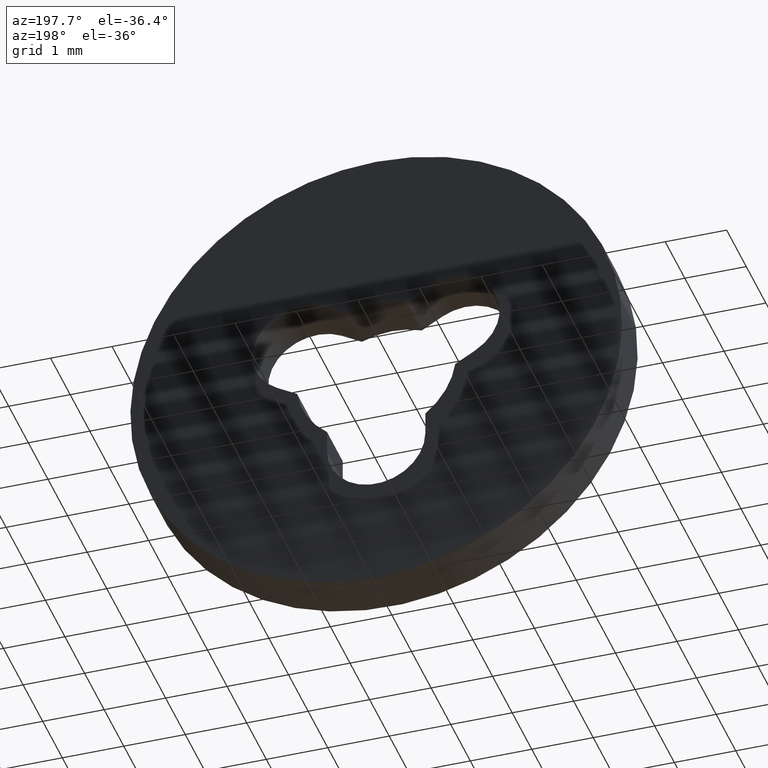
[diagram: clean part render]
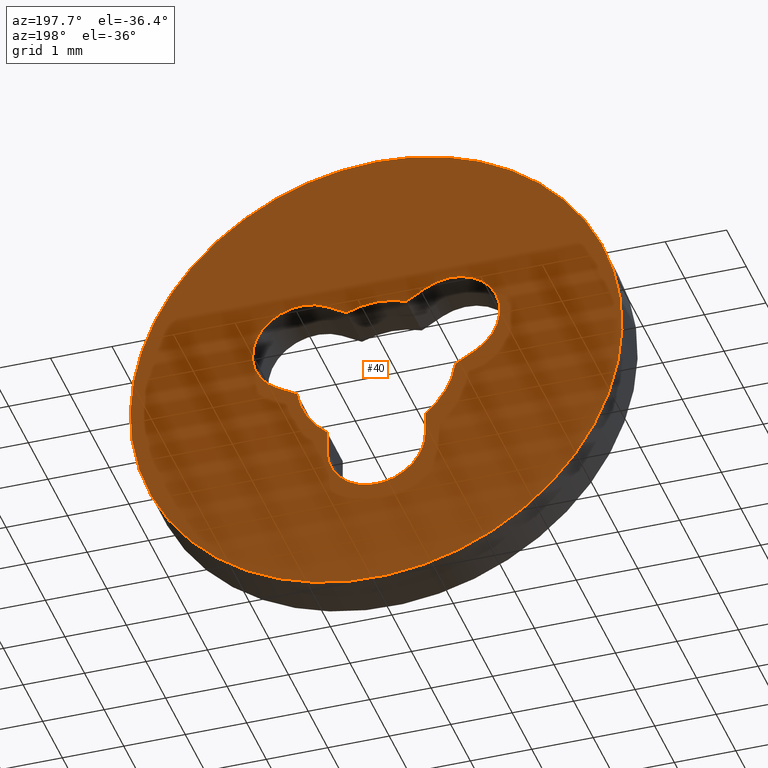
[diagram: same view with one face highlighted and labeled with its STEP entity id]
A machine part, auxiliary view. The second image highlights one B-rep face of the part: STEP entity #40.
In plain terms, the highlighted planar face has unit normal (-0, 1, 0).
Its self-contained STEP definition (entity closure, byte-faithful):
#40=ADVANCED_FACE('',(#57,#58),#56,.T.);
#56=PLANE('',#221);
#57=FACE_OUTER_BOUND('',#222,.T.);
#58=FACE_BOUND('',#223,.T.);
#218=CARTESIAN_POINT('',(-8.31384387633E+00,8.00000000000E-01,5.20000000000E+00));
#219=DIRECTION('',(-0.00000000000E+00,1.00000000000E+00,0.00000000000E+00));
#220=DIRECTION('',(1.00000000000E+00,0.00000000000E+00,0.00000000000E+00));
#221=AXIS2_PLACEMENT_3D('',#218,#219,#220);
#222=EDGE_LOOP('',(#300,#301,#302));
#223=EDGE_LOOP('',(#303,#304,#305,#306,#307,#308,#309,#310,#311,#312,#313,#314));
#300=ORIENTED_EDGE('',*,*,#388,.F.);
#301=ORIENTED_EDGE('',*,*,#389,.F.);
#302=ORIENTED_EDGE('',*,*,#390,.F.);
#303=ORIENTED_EDGE('',*,*,#391,.T.);
#304=ORIENTED_EDGE('',*,*,#392,.T.);
#305=ORIENTED_EDGE('',*,*,#393,.T.);
#306=ORIENTED_EDGE('',*,*,#394,.T.);
#307=ORIENTED_EDGE('',*,*,#395,.T.);
#308=ORIENTED_EDGE('',*,*,#396,.T.);
#309=ORIENTED_EDGE('',*,*,#397,.T.);
#310=ORIENTED_EDGE('',*,*,#398,.T.);
#311=ORIENTED_EDGE('',*,*,#399,.T.);
#312=ORIENTED_EDGE('',*,*,#400,.T.);
#313=ORIENTED_EDGE('',*,*,#401,.T.);
#314=ORIENTED_EDGE('',*,*,#402,.T.);
#388=EDGE_CURVE('',#432,#433,#434,.T.);
#389=EDGE_CURVE('',#440,#432,#441,.T.);
#390=EDGE_CURVE('',#433,#440,#447,.T.);
#391=EDGE_CURVE('',#453,#454,#455,.T.);
#392=EDGE_CURVE('',#454,#461,#462,.T.);
#393=EDGE_CURVE('',#461,#468,#469,.T.);
#394=EDGE_CURVE('',#468,#475,#476,.T.);
#395=EDGE_CURVE('',#475,#482,#483,.T.);
#396=EDGE_CURVE('',#482,#489,#490,.T.);
#397=EDGE_CURVE('',#489,#496,#497,.T.);
#398=EDGE_CURVE('',#496,#503,#504,.T.);
#399=EDGE_CURVE('',#503,#510,#511,.T.);
#400=EDGE_CURVE('',#510,#517,#518,.T.);
#401=EDGE_CURVE('',#517,#524,#525,.T.);
#402=EDGE_CURVE('',#524,#453,#531,.T.);
#432=VERTEX_POINT('',#726);
#433=VERTEX_POINT('',#727);
#434=CIRCLE('',#731,4.00000000000E+00);
#440=VERTEX_POINT('',#732);
#441=CIRCLE('',#736,4.00000000000E+00);
#447=CIRCLE('',#740,4.00000000000E+00);
#453=VERTEX_POINT('',#741);
#454=VERTEX_POINT('',#742);
#455=LINE('',#743,#744);
#461=VERTEX_POINT('',#746);
#462=CIRCLE('',#750,8.00034399239E-01);
#468=VERTEX_POINT('',#751);
#469=LINE('',#752,#753);
#475=VERTEX_POINT('',#755);
#476=CIRCLE('',#759,1.30000000000E+00);
#482=VERTEX_POINT('',#760);
#483=LINE('',#761,#762);
#489=VERTEX_POINT('',#764);
#490=CIRCLE('',#768,8.00034399239E-01);
#496=VERTEX_POINT('',#769);
#497=LINE('',#770,#771);
#503=VERTEX_POINT('',#773);
#504=CIRCLE('',#777,1.30000000000E+00);
#510=VERTEX_POINT('',#778);
#511=LINE('',#779,#780);
#517=VERTEX_POINT('',#782);
#518=CIRCLE('',#786,8.00000000000E-01);
#524=VERTEX_POINT('',#787);
#525=LINE('',#788,#789);
#531=CIRCLE('',#794,1.30000373925E+00);
#726=CARTESIAN_POINT('',(3.97203811599E+00,8.00000000000E-01,-4.72136849999E-01));
#727=CARTESIAN_POINT('',(-1.83741910575E-14,8.00000000000E-01,4.00000000000E+00));
#728=CARTESIAN_POINT('',(-5.40234523783E-13,8.00000000000E-01,-1.18860477016E-12));
#729=DIRECTION('',(9.79792073693E-17,-1.00000000000E+00,3.53993598145E-16));
#730=DIRECTION('',(1.30104260698E-13,3.53993598145E-16,1.00000000000E+00));
#731=AXIS2_PLACEMENT_3D('',#728,#729,#730);
#732=CARTESIAN_POINT('',(-3.97195644415E+00,8.00000000000E-01,4.72823440361E-01));
#733=CARTESIAN_POINT('',(-5.40234523783E-13,8.00000000000E-01,-1.18860477016E-12));
#734=DIRECTION('',(9.79792073693E-17,-1.00000000000E+00,3.53993598145E-16));
#735=DIRECTION('',(1.30104260698E-13,3.53993598145E-16,1.00000000000E+00));
#736=AXIS2_PLACEMENT_3D('',#733,#734,#735);
#737=CARTESIAN_POINT('',(-5.40234523783E-13,8.00000000000E-01,-1.18860477016E-12));
#738=DIRECTION('',(9.79792073693E-17,-1.00000000000E+00,3.53993598145E-16));
#739=DIRECTION('',(1.30104260698E-13,3.53993598145E-16,1.00000000000E+00));
#740=AXIS2_PLACEMENT_3D('',#737,#738,#739);
#741=CARTESIAN_POINT('',(1.28740886990E+00,8.00000000000E-01,-1.80494880023E-01));
#742=CARTESIAN_POINT('',(1.61239999087E+00,8.00000000000E-01,7.09999473246E-03));
#743=CARTESIAN_POINT('',(1.28740886990E+00,8.00000000000E-01,-1.80494880023E-01));
#744=VECTOR('',#745,3.75248005658E-01);
#745=DIRECTION('',(8.66070215109E-01,-6.12438074640E-14,4.99922376475E-01));
#746=CARTESIAN_POINT('',(8.16907166695E-01,8.00000000000E-01,1.39540306212E+00));
#747=CARTESIAN_POINT('',(1.21244490187E+00,8.00000000000E-01,6.99985964243E-01));
#748=DIRECTION('',(1.76825861046E-14,-1.00000000000E+00,2.68710301184E-14));
#749=DIRECTION('',(-4.99922365069E-01,1.44322787459E-14,8.66070221693E-01));
#750=AXIS2_PLACEMENT_3D('',#747,#748,#749);
#751=CARTESIAN_POINT('',(4.87474034111E-01,8.00000000000E-01,1.20514275755E+00));
#752=CARTESIAN_POINT('',(8.16907166695E-01,8.00000000000E-01,1.39540306212E+00));
#753=VECTOR('',#754,3.80427617740E-01);
#754=DIRECTION('',(-8.65954828780E-01,0.00000000000E+00,-5.00122219575E-01));
#755=CARTESIAN_POINT('',(-4.87532842887E-01,8.00000000000E-01,1.20511896803E+00));
#756=CARTESIAN_POINT('',(2.77410066489E-16,8.00000000000E-01,4.66293670343E-15));
#757=DIRECTION('',(-4.42701356339E-16,-1.00000000000E+00,-1.01853868203E-15));
#758=DIRECTION('',(-3.74980026239E-01,1.11022302463E-15,-9.27032890421E-01));
#759=AXIS2_PLACEMENT_3D('',#756,#757,#758);
#760=CARTESIAN_POINT('',(-8.17007166695E-01,8.00000000000E-01,1.39540306212E+00));
#761=CARTESIAN_POINT('',(-4.87532842887E-01,8.00000000000E-01,1.20511896803E+00));
#762=VECTOR('',#763,3.80475185146E-01);
#763=DIRECTION('',(-8.65954828780E-01,0.00000000000E+00,5.00122219575E-01));
#764=CARTESIAN_POINT('',(-1.61250000000E+00,8.00000000000E-01,7.09999999999E-03));
#765=CARTESIAN_POINT('',(-1.21254490187E+00,8.00000000000E-01,6.99985964243E-01));
#766=DIRECTION('',(0.00000000000E+00,-1.00000000000E+00,0.00000000000E+00));
#767=DIRECTION('',(-4.94400910201E-01,-0.00000000000E+00,-8.69233996109E-01));
#768=AXIS2_PLACEMENT_3D('',#765,#766,#767);
#769=CARTESIAN_POINT('',(-1.28740006281E+00,8.00000000000E-01,-1.80557686819E-01));
#770=CARTESIAN_POINT('',(-1.61250000000E+00,8.00000000000E-01,7.09999999999E-03));
#771=VECTOR('',#772,3.75373649290E-01);
#772=DIRECTION('',(8.66070215109E-01,0.00000000000E+00,-4.99922376475E-01));
#773=CARTESIAN_POINT('',(-8.00002281233E-01,8.00000000000E-01,-1.02469329559E+00));
#774=CARTESIAN_POINT('',(4.44089209850E-16,8.00000000000E-01,-1.11022302463E-16));
#775=DIRECTION('',(1.09155269548E-15,-1.00000000000E+00,2.10597089278E-16));
#776=DIRECTION('',(9.90307740625E-01,1.11022302463E-15,1.38890528323E-01));
#777=AXIS2_PLACEMENT_3D('',#774,#775,#776);
#778=CARTESIAN_POINT('',(-8.00000000000E-01,8.00000000000E-01,-1.40000000000E+00));
#779=CARTESIAN_POINT('',(-8.00002281233E-01,8.00000000000E-01,-1.02469329559E+00));
#780=VECTOR('',#781,3.75306704419E-01);
#781=DIRECTION('',(6.07831649725E-06,0.00000000000E+00,-9.99999999982E-01));
#782=CARTESIAN_POINT('',(8.00000000000E-01,8.00000000000E-01,-1.39999986037E+00));
#783=CARTESIAN_POINT('',(5.09314874389E-15,8.00000000000E-01,-1.40000000000E+00));
#784=DIRECTION('',(-5.39260357259E-31,-1.00000000000E+00,-9.25185807240E-17));
#785=DIRECTION('',(-1.00000000000E+00,-1.13298841801E-32,5.95113151466E-15));
#786=AXIS2_PLACEMENT_3D('',#783,#784,#785);
#787=CARTESIAN_POINT('',(8.00000000000E-01,8.00000000000E-01,-1.02470000000E+00));
#788=CARTESIAN_POINT('',(8.00000000000E-01,8.00000000000E-01,-1.39999986037E+00));
#789=VECTOR('',#790,3.75299860374E-01);
#790=DIRECTION('',(5.85729391578E-14,0.00000000000E+00,1.00000000000E+00));
#791=CARTESIAN_POINT('',(-4.26816522725E-06,8.00000000000E-01,-3.51177498126E-06));
#792=DIRECTION('',(-6.60770303349E-16,-1.00000000000E+00,8.92626138146E-16));
#793=DIRECTION('',(-6.15386128525E-01,1.11021983125E-15,7.88225800655E-01));
#794=AXIS2_PLACEMENT_3D('',#791,#792,#793);